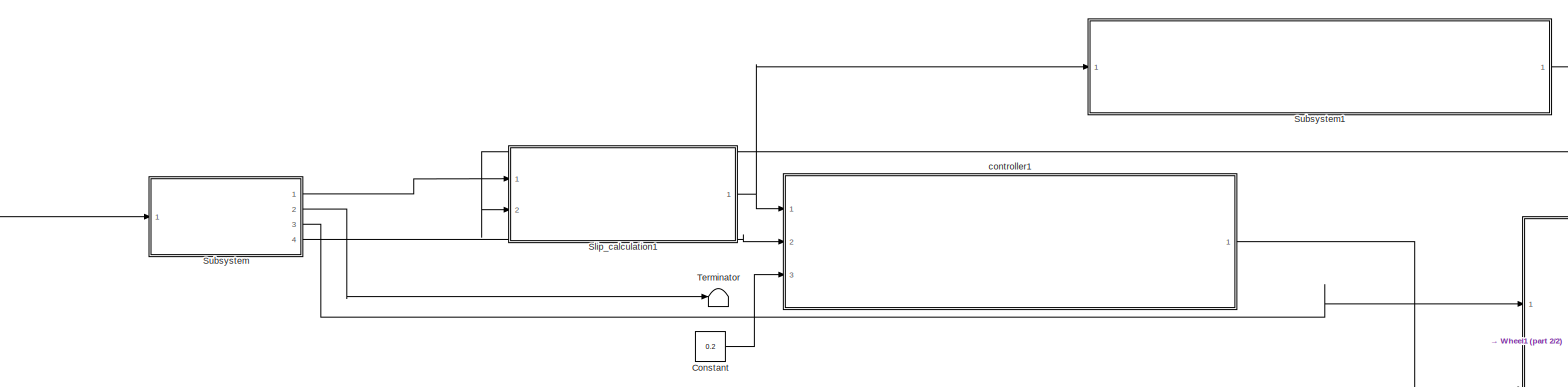
[diagram: root canvas - part 1/2, central region]
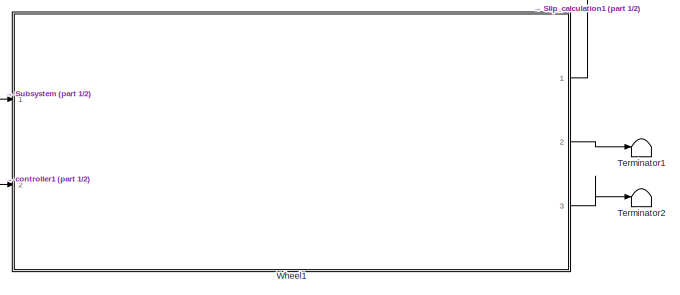
[diagram: root canvas - part 2/2, bottom right region]
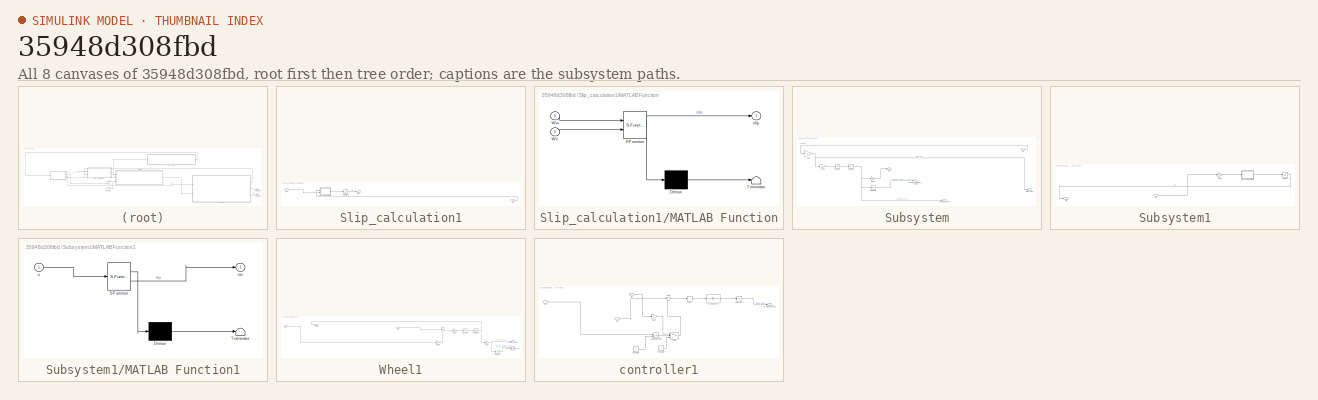
[diagram: thumbnail index - all 8 canvases of the model, root first then tree order]
MODEL slx_35948d308fbd
KIND model
CONFIG AbsTol = auto
CONFIG EnableMultiTasking = off
CONFIG FixedStep = auto
CONFIG MaxStep = auto
CONFIG MinStep = auto
CONFIG RelTol = 1e-3
CONFIG SampleTimeConstraint = Unconstrained
CONFIG SolverName = VariableStepAuto
CONFIG StartTime = 0.0
CONFIG StopTime = 10.0
BLOCK [Constant] Constant
  Value = 0.2
BLOCK [SubSystem] Slip_calculation1
  Ports = [2, 1]
  RequestExecContextInheritance = off
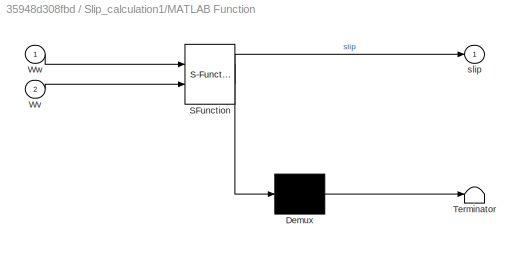
BLOCK [SubSystem] Slip_calculation1/MATLAB Function
  ErrorFcn = Stateflow.Translate.translate
  PermitHierarchicalResolution = ExplicitOnly
  Ports = [2, 1]
  RequestExecContextInheritance = off
  SFBlockType = MATLAB Function
  TreatAsAtomicUnit = on
BLOCK [Demux] Slip_calculation1/MATLAB Function/ Demux 
  Outputs = 1
  Ports = [1, 1]
BLOCK [S-Function] Slip_calculation1/MATLAB Function/ SFunction 
  EnableBusSupport = on
  FunctionName = sf_sfun
  PortCounts = [2 2]
  Ports = [2, 2]
  SFcnIsStateOwnerBlock = off
  SFunctionDeploymentMode = off
  Tag = Stateflow S-Function 3
BLOCK [Terminator] Slip_calculation1/MATLAB Function/ Terminator 
BLOCK [Inport] Slip_calculation1/MATLAB Function/Wv
  Port = 2
BLOCK [Inport] Slip_calculation1/MATLAB Function/Ww
BLOCK [Outport] Slip_calculation1/MATLAB Function/slip
BLOCK [Saturate] Slip_calculation1/Saturation1
  LowerLimit = 0
  UpperLimit = 1
BLOCK [Inport] Slip_calculation1/Wv
BLOCK [Inport] Slip_calculation1/Ww
  Port = 2
BLOCK [Outport] Slip_calculation1/slip
BLOCK [SubSystem] Subsystem
  Ports = [1, 4]
  RequestExecContextInheritance = off
  TreatAsAtomicUnit = on
BLOCK [Gain] Subsystem/Gain
  Gain = 2
BLOCK [Gain] Subsystem/Gain1
  Gain = 3
BLOCK [Gain] Subsystem/Gain2
  Gain = 1/R
BLOCK [Integrator] Subsystem/Integrator
  InitialCondition = 2
  Ports = [1, 1]
BLOCK [Integrator] Subsystem/Integrator1
  Ports = [1, 1]
BLOCK [Outport] Subsystem/Out1
BLOCK [Saturate] Subsystem/Saturation
  LowerLimit = 0.001
  UpperLimit = 1000
BLOCK [Outport] Subsystem/friction_force
  Port = 3
BLOCK [Inport] Subsystem/mu
BLOCK [Outport] Subsystem/stopping_distance_vehicle
  Port = 2
BLOCK [Outport] Subsystem/vehicle_speed
  Port = 4
BLOCK [SubSystem] Subsystem1
  Ports = [1, 1]
  RequestExecContextInheritance = off
BLOCK [Gain] Subsystem1/Gain3
  Gain = 100
BLOCK [Inport] Subsystem1/In1
BLOCK [SubSystem] Subsystem1/MATLAB Function1
  ErrorFcn = Stateflow.Translate.translate
  PermitHierarchicalResolution = ExplicitOnly
  Ports = [1, 1]
  RequestExecContextInheritance = off
  SFBlockType = MATLAB Function
  TreatAsAtomicUnit = on
BLOCK [Demux] Subsystem1/MATLAB Function1/ Demux 
  Outputs = 1
  Ports = [1, 1]
BLOCK [S-Function] Subsystem1/MATLAB Function1/ SFunction 
  EnableBusSupport = on
  FunctionName = sf_sfun
  PortCounts = [1 2]
  Ports = [1, 2]
  SFcnIsStateOwnerBlock = off
  SFunctionDeploymentMode = off
  Tag = Stateflow S-Function 4
BLOCK [Terminator] Subsystem1/MATLAB Function1/ Terminator 
BLOCK [Outport] Subsystem1/MATLAB Function1/mu
BLOCK [Inport] Subsystem1/MATLAB Function1/u
BLOCK [Saturate] Subsystem1/Saturation2
  LowerLimit = 0
  UpperLimit = 1
BLOCK [Outport] Subsystem1/mu
BLOCK [Terminator] Terminator
BLOCK [Terminator] Terminator1
BLOCK [Terminator] Terminator2
BLOCK [SubSystem] Wheel1
  Ports = [2, 3]
  RequestExecContextInheritance = off
BLOCK [Gain] Wheel1/Gain5
  Gain = -J
BLOCK [Gain] Wheel1/Gain6
  Gain = R
BLOCK [Inport] Wheel1/In1
BLOCK [Inport] Wheel1/In2
  Port = 2
BLOCK [Integrator] Wheel1/Integrator3
  InitialCondition = 28/R
  Ports = [1, 1]
BLOCK [Integrator] Wheel1/Integrator4
  Ports = [1, 1]
BLOCK [Gain] Wheel1/Multiply
  Gain = R
BLOCK [Outport] Wheel1/Out1
BLOCK [Saturate] Wheel1/Saturation3
  LowerLimit = 0
  UpperLimit = 1000
BLOCK [Sum] Wheel1/Sum1
  Inputs = |+-
  Ports = [2, 1]
BLOCK [Outport] Wheel1/stopping_distance_wheel
  Port = 3
BLOCK [Outport] Wheel1/wheel_speed
  Port = 2
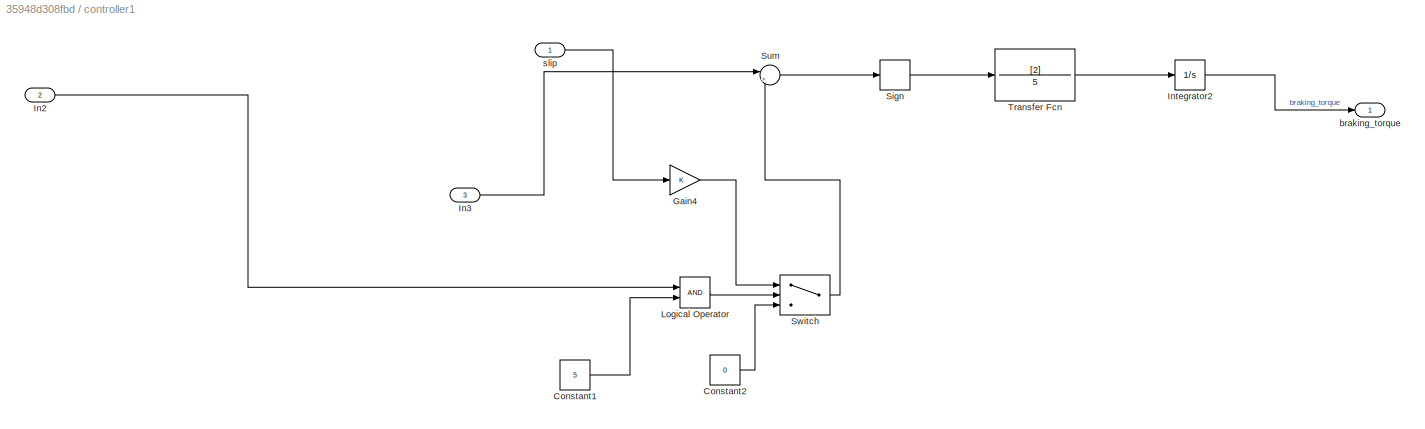
BLOCK [SubSystem] controller1
  Ports = [3, 1]
  RequestExecContextInheritance = off
BLOCK [Constant] controller1/Constant1
  SampleTime = 5
  Value = 5
BLOCK [Constant] controller1/Constant2
  Value = 0
BLOCK [Gain] controller1/Gain4
BLOCK [Inport] controller1/In2
  Port = 2
BLOCK [Inport] controller1/In3
  Port = 3
BLOCK [Integrator] controller1/Integrator2
  LimitOutput = on
  LowerSaturationLimit = 0
  Ports = [1, 1]
  UpperSaturationLimit = 5
BLOCK [Logic] controller1/Logical Operator
  AllPortsSameDT = off
  OutDataTypeStr = boolean
  Ports = [2, 1]
BLOCK [Signum] controller1/Sign
BLOCK [Sum] controller1/Sum
  Inputs = |+-
  Ports = [2, 1]
BLOCK [Switch] controller1/Switch
  Criteria = u2 > Threshold
  InputSameDT = off
  SaturateOnIntegerOverflow = off
BLOCK [TransferFcn] controller1/Transfer Fcn
  Denominator = 5
  Numerator = [2]
BLOCK [Outport] controller1/braking_torque
BLOCK [Inport] controller1/slip
ANNOTATION Subsystem: Vehicle1
LINE Constant:1 -> controller1:3
LINE Slip_calculation1/MATLAB Function:1 -> Slip_calculation1/Saturation1:1
LINE Slip_calculation1/Saturation1:1 -> Slip_calculation1/slip:1
LINE Slip_calculation1/Wv:1 -> Slip_calculation1/MATLAB Function:2
LINE Slip_calculation1/Ww:1 -> Slip_calculation1/MATLAB Function:1
NET Slip_calculation1:1 -> Subsystem1:1, controller1:1
LINE Subsystem/Gain1:1 -> Subsystem/Integrator:1
LINE Subsystem/Gain2:1 -> Subsystem/Out1:1
NET Subsystem/Gain:1 -> Subsystem/Gain1:1, Subsystem/friction_force:1
LINE Subsystem/Integrator1:1 -> Subsystem/stopping_distance_vehicle:1
LINE Subsystem/Integrator:1 -> Subsystem/Saturation:1
NET Subsystem/Saturation:1 -> Subsystem/Gain2:1, Subsystem/Integrator1:1, Subsystem/vehicle_speed:1
LINE Subsystem/mu:1 -> Subsystem/Gain:1
LINE Subsystem1/Gain3:1 -> Subsystem1/MATLAB Function1:1
LINE Subsystem1/In1:1 -> Subsystem1/Gain3:1
LINE Subsystem1/MATLAB Function1:1 -> Subsystem1/Saturation2:1
LINE Subsystem1/Saturation2:1 -> Subsystem1/mu:1
LINE Subsystem1:1 -> Subsystem:1
LINE Subsystem:1 -> Slip_calculation1:1
LINE Subsystem:2 -> Terminator:1
LINE Subsystem:3 -> Wheel1:1
LINE Subsystem:4 -> controller1:2
LINE Wheel1/Gain5:1 -> Wheel1/Integrator3:1
NET Wheel1/Gain6:1 -> Wheel1/Integrator4:1, Wheel1/wheel_speed:1
LINE Wheel1/In1:1 -> Wheel1/Multiply:1
LINE Wheel1/In2:1 -> Wheel1/Sum1:1
LINE Wheel1/Integrator3:1 -> Wheel1/Saturation3:1
LINE Wheel1/Integrator4:1 -> Wheel1/stopping_distance_wheel:1
LINE Wheel1/Multiply:1 -> Wheel1/Sum1:2
NET Wheel1/Saturation3:1 -> Wheel1/Gain6:1, Wheel1/Out1:1
LINE Wheel1/Sum1:1 -> Wheel1/Gain5:1
LINE Wheel1:1 -> Slip_calculation1:2
LINE Wheel1:2 -> Terminator1:1
LINE Wheel1:3 -> Terminator2:1
LINE controller1/Constant1:1 -> controller1/Logical Operator:2
LINE controller1/Constant2:1 -> controller1/Switch:3
LINE controller1/Gain4:1 -> controller1/Switch:1
LINE controller1/In2:1 -> controller1/Logical Operator:1
LINE controller1/In3:1 -> controller1/Sum:1
LINE controller1/Integrator2:1 -> controller1/braking_torque:1
LINE controller1/Logical Operator:1 -> controller1/Switch:2
LINE controller1/Sign:1 -> controller1/Transfer Fcn:1
LINE controller1/Sum:1 -> controller1/Sign:1
LINE controller1/Switch:1 -> controller1/Sum:2
LINE controller1/Transfer Fcn:1 -> controller1/Integrator2:1
LINE controller1/slip:1 -> controller1/Gain4:1
LINE controller1:1 -> Wheel1:2
note: NET lines group one-source signal fan-out (src -> all destinations, sorted); 1:1 wires keep LINE
CHART Subsystem1/MATLAB Function1 states=1 transitions=1
  STATE_LABEL 'eML_blk_kernel()'
  STATE_LABEL 'SCRIPT:\nfunction mu = fcn(u)\n\nmu=0.7*(1.07*(1-exp(-0.5*u)-0.003*u));\n'
CHART Slip_calculation1/MATLAB Function states=1 transitions=1
  STATE_LABEL 'eML_blk_kernel()'
  STATE_LABEL 'SCRIPT:\nfunction slip = fcn(Ww, Wv)\n\nslip=1-(Ww/(Wv+(Wv==0)*eps));'
CHART  states=0 transitions=0
CHART  states=0 transitions=0
